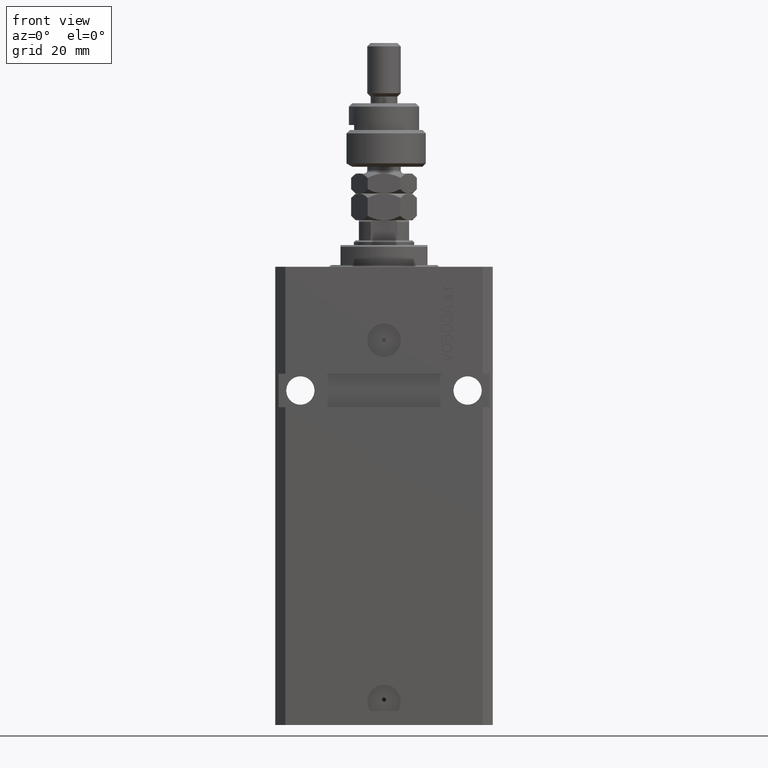
[diagram: clean part render]
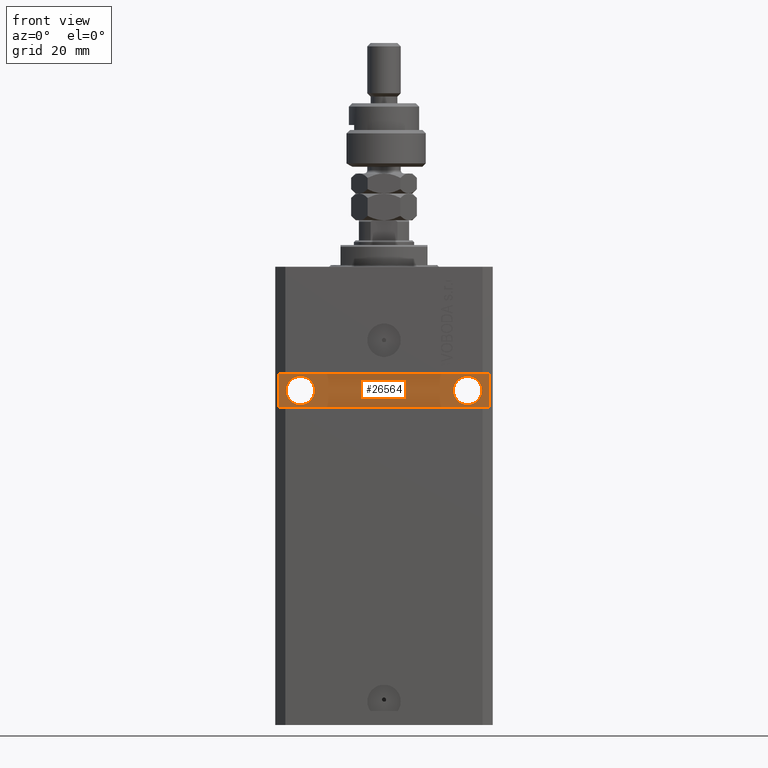
[diagram: same view with one face highlighted and labeled with its STEP entity id]
A machine part, front view. The second image highlights one B-rep face of the part: STEP entity #26564.
In plain terms, the highlighted planar face has unit normal (0, -1, 0).
Its self-contained STEP definition (entity closure, byte-faithful):
#443 = CARTESIAN_POINT ( 'NONE',  ( 31.49999999999651124, -20.49999999999949551, -137.0000000000000000 ) ) ;
#2218 = DIRECTION ( 'NONE',  ( 1.101411730780568590E-16, -1.000000000000000000, 0.000000000000000000 ) ) ;
#2690 = DIRECTION ( 'NONE',  ( 1.000000000000000000, 0.000000000000000000, 0.000000000000000000 ) ) ;
#3584 = VECTOR ( 'NONE', #13327, 1000.000000000000000 ) ;
#3622 = LINE ( 'NONE', #443, #35176 ) ;
#6096 = ORIENTED_EDGE ( 'NONE', *, *, #28091, .T. ) ;
#6321 = CARTESIAN_POINT ( 'NONE',  ( 25.00000000000000711, -20.49999999999949551, -36.99999999999999289 ) ) ;
#7696 = EDGE_LOOP ( 'NONE', ( #24272, #24757 ) ) ;
#8360 = CARTESIAN_POINT ( 'NONE',  ( 2.166708070385810581E-15, -20.49999999999949907, 0.000000000000000000 ) ) ;
#8817 = EDGE_CURVE ( 'NONE', #36002, #42349, #46489, .T. ) ;
#10069 = CIRCLE ( 'NONE', #33174, 4.249999999989050536 ) ;
#11419 = CARTESIAN_POINT ( 'NONE',  ( 32.49999999999650413, -20.49999999999949196, -32.00000000000000711 ) ) ;
#11815 = DIRECTION ( 'NONE',  ( 1.000000000000000000, 1.067522139062765303E-16, 1.067522139062765303E-16 ) ) ;
#12685 = VERTEX_POINT ( 'NONE', #22411 ) ;
#13327 = DIRECTION ( 'NONE',  ( 0.000000000000000000, 0.000000000000000000, 1.000000000000000000 ) ) ;
#14321 = VERTEX_POINT ( 'NONE', #30991 ) ;
#15354 = FACE_BOUND ( 'NONE', #18747, .T. ) ;
#17185 = CARTESIAN_POINT ( 'NONE',  ( -31.49999999999650413, -20.49999999999950262, -137.0000000000000000 ) ) ;
#18411 = LINE ( 'NONE', #29275, #46703 ) ;
#18740 = AXIS2_PLACEMENT_3D ( 'NONE', #38691, #45927, #23960 ) ;
#18747 = EDGE_LOOP ( 'NONE', ( #20901, #19477 ) ) ;
#19477 = ORIENTED_EDGE ( 'NONE', *, *, #38012, .F. ) ;
#20811 = CARTESIAN_POINT ( 'NONE',  ( -24.99999999999999289, -20.49999999999950262, -37.00000000000000000 ) ) ;
#20901 = ORIENTED_EDGE ( 'NONE', *, *, #46911, .F. ) ;
#21335 = EDGE_CURVE ( 'NONE', #12685, #29717, #18411, .T. ) ;
#21404 = ORIENTED_EDGE ( 'NONE', *, *, #21335, .T. ) ;
#21778 = CARTESIAN_POINT ( 'NONE',  ( -29.24999999999377920, -20.49999999999950262, -37.00000000000000000 ) ) ;
#21789 = CIRCLE ( 'NONE', #45666, 4.249999999993782751 ) ;
#22411 = CARTESIAN_POINT ( 'NONE',  ( -31.49999999999650413, -20.49999999999949907, -41.99999999999999289 ) ) ;
#22594 = DIRECTION ( 'NONE',  ( 1.067522139062765303E-16, -1.000000000000000000, 0.000000000000000000 ) ) ;
#23064 = DIRECTION ( 'NONE',  ( 1.000000000000000000, 1.067522139062765303E-16, 0.000000000000000000 ) ) ;
#23960 = DIRECTION ( 'NONE',  ( 1.000000000000000000, 0.000000000000000000, 0.000000000000000000 ) ) ;
#24008 = CARTESIAN_POINT ( 'NONE',  ( 31.49999999999650413, -20.49999999999949196, -41.99999999999998579 ) ) ;
#24091 = EDGE_LOOP ( 'NONE', ( #6096, #24829, #21404, #40969 ) ) ;
#24272 = ORIENTED_EDGE ( 'NONE', *, *, #43202, .F. ) ;
#24435 = EDGE_CURVE ( 'NONE', #12685, #24822, #24666, .T. ) ;
#24666 = LINE ( 'NONE', #17185, #3584 ) ;
#24757 = ORIENTED_EDGE ( 'NONE', *, *, #8817, .F. ) ;
#24822 = VERTEX_POINT ( 'NONE', #26853 ) ;
#24829 = ORIENTED_EDGE ( 'NONE', *, *, #24435, .F. ) ;
#25296 = VERTEX_POINT ( 'NONE', #41891 ) ;
#25758 = PLANE ( 'NONE',  #29862 ) ;
#26146 = DIRECTION ( 'NONE',  ( -1.000000000000000000, -1.067522139062765303E-16, 1.067522139062765303E-16 ) ) ;
#26225 = FACE_OUTER_BOUND ( 'NONE', #24091, .T. ) ;
#26564 = ADVANCED_FACE ( 'NONE', ( #15354, #29374, #26225 ), #25758, .T. ) ;
#26766 = DIRECTION ( 'NONE',  ( 0.000000000000000000, 0.000000000000000000, -1.000000000000000000 ) ) ;
#26853 = CARTESIAN_POINT ( 'NONE',  ( -31.49999999999650413, -20.49999999999950262, -32.00000000000000000 ) ) ;
#27684 = VERTEX_POINT ( 'NONE', #46021 ) ;
#28091 = EDGE_CURVE ( 'NONE', #14321, #24822, #29761, .T. ) ;
#28988 = AXIS2_PLACEMENT_3D ( 'NONE', #43902, #39807, #32561 ) ;
#29275 = CARTESIAN_POINT ( 'NONE',  ( -32.49999999999650413, -20.49999999999949907, -41.99999999999999289 ) ) ;
#29374 = FACE_BOUND ( 'NONE', #7696, .T. ) ;
#29717 = VERTEX_POINT ( 'NONE', #24008 ) ;
#29761 = LINE ( 'NONE', #11419, #42240 ) ;
#29862 = AXIS2_PLACEMENT_3D ( 'NONE', #8360, #22594, #23064 ) ;
#30991 = CARTESIAN_POINT ( 'NONE',  ( 31.49999999999651124, -20.49999999999949196, -32.00000000000000711 ) ) ;
#31676 = DIRECTION ( 'NONE',  ( 1.000000000000000000, 0.000000000000000000, 0.000000000000000000 ) ) ;
#32085 = CIRCLE ( 'NONE', #28988, 4.249999999989050536 ) ;
#32561 = DIRECTION ( 'NONE',  ( 1.000000000000000000, 0.000000000000000000, 0.000000000000000000 ) ) ;
#33174 = AXIS2_PLACEMENT_3D ( 'NONE', #6321, #35767, #2690 ) ;
#35176 = VECTOR ( 'NONE', #26766, 1000.000000000000000 ) ;
#35767 = DIRECTION ( 'NONE',  ( 1.394545208792185644E-16, -1.000000000000000000, 1.232595164407830946E-32 ) ) ;
#36002 = VERTEX_POINT ( 'NONE', #21778 ) ;
#38012 = EDGE_CURVE ( 'NONE', #27684, #25296, #10069, .T. ) ;
#38691 = CARTESIAN_POINT ( 'NONE',  ( -24.99999999999999289, -20.49999999999950262, -37.00000000000000000 ) ) ;
#39807 = DIRECTION ( 'NONE',  ( 1.394545208792185644E-16, -1.000000000000000000, 1.232595164407830946E-32 ) ) ;
#40969 = ORIENTED_EDGE ( 'NONE', *, *, #47662, .F. ) ;
#41891 = CARTESIAN_POINT ( 'NONE',  ( 29.24999999998905764, -20.49999999999949551, -36.99999999999999289 ) ) ;
#42240 = VECTOR ( 'NONE', #26146, 1000.000000000000000 ) ;
#42349 = VERTEX_POINT ( 'NONE', #46586 ) ;
#43202 = EDGE_CURVE ( 'NONE', #42349, #36002, #21789, .T. ) ;
#43902 = CARTESIAN_POINT ( 'NONE',  ( 25.00000000000000711, -20.49999999999949551, -36.99999999999999289 ) ) ;
#45666 = AXIS2_PLACEMENT_3D ( 'NONE', #20811, #2218, #31676 ) ;
#45927 = DIRECTION ( 'NONE',  ( 1.101411730780568590E-16, -1.000000000000000000, 0.000000000000000000 ) ) ;
#46021 = CARTESIAN_POINT ( 'NONE',  ( 20.75000000001095657, -20.49999999999949551, -36.99999999999999289 ) ) ;
#46489 = CIRCLE ( 'NONE', #18740, 4.249999999993782751 ) ;
#46586 = CARTESIAN_POINT ( 'NONE',  ( -20.75000000000621014, -20.49999999999950262, -37.00000000000000000 ) ) ;
#46703 = VECTOR ( 'NONE', #11815, 1000.000000000000000 ) ;
#46911 = EDGE_CURVE ( 'NONE', #25296, #27684, #32085, .T. ) ;
#47662 = EDGE_CURVE ( 'NONE', #14321, #29717, #3622, .T. ) ;